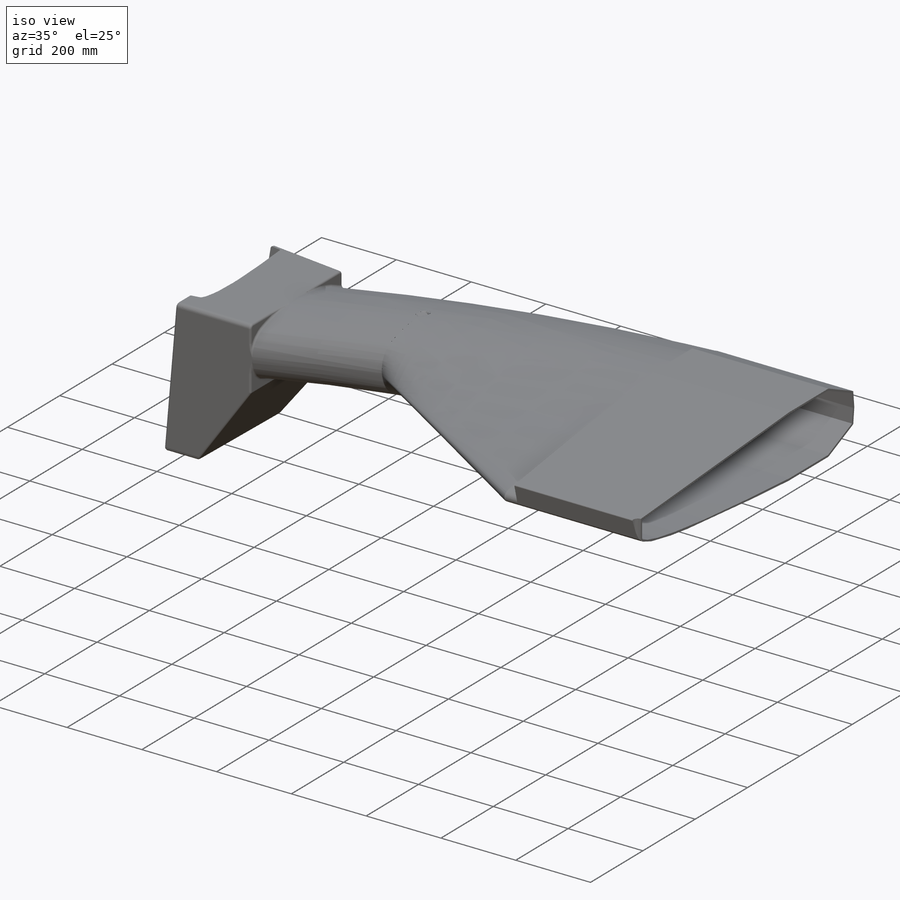
[diagram: iso view]
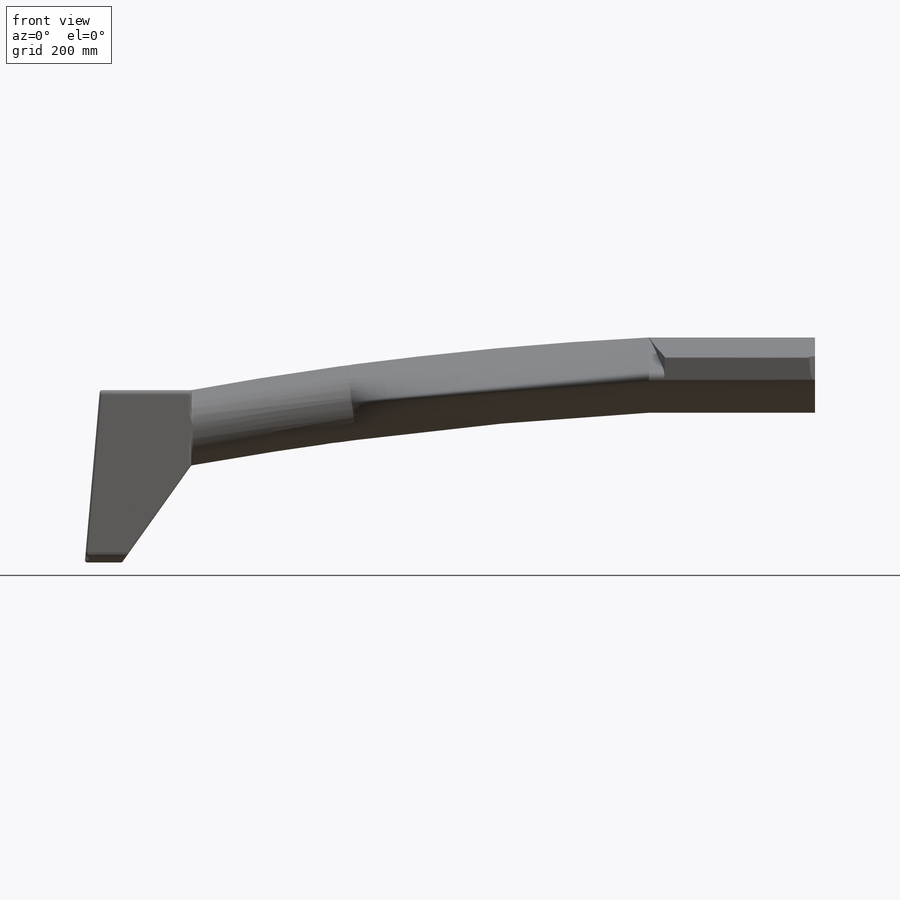
[diagram: front view]
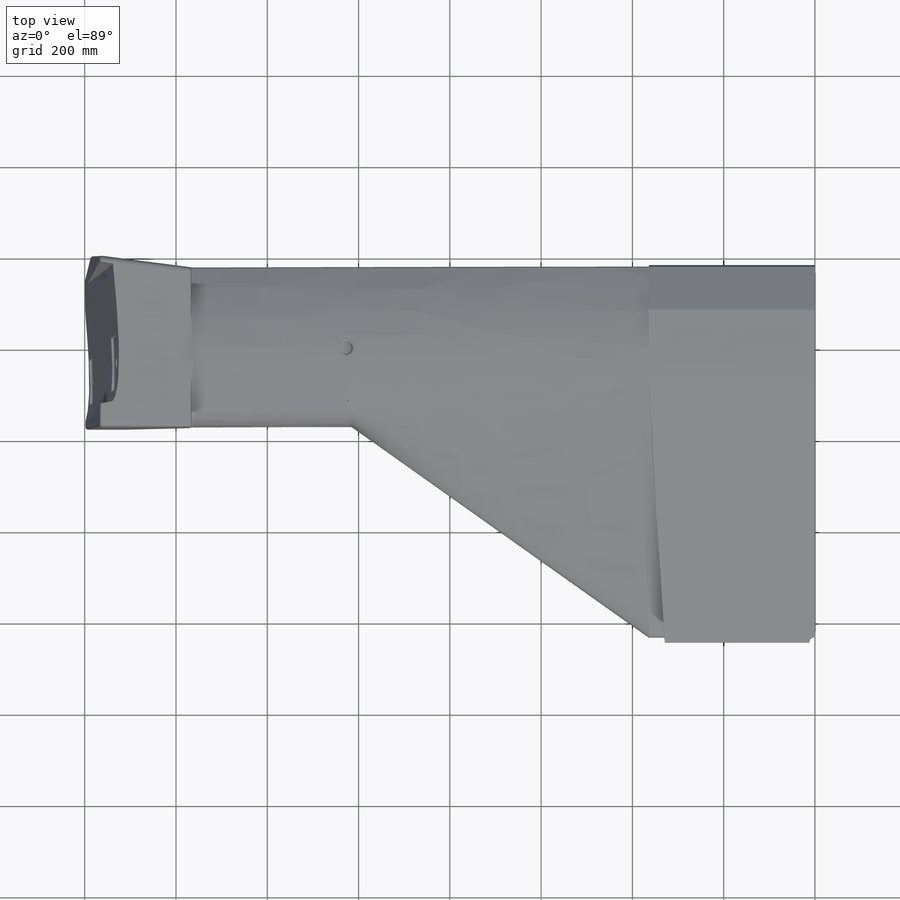
[diagram: top view]
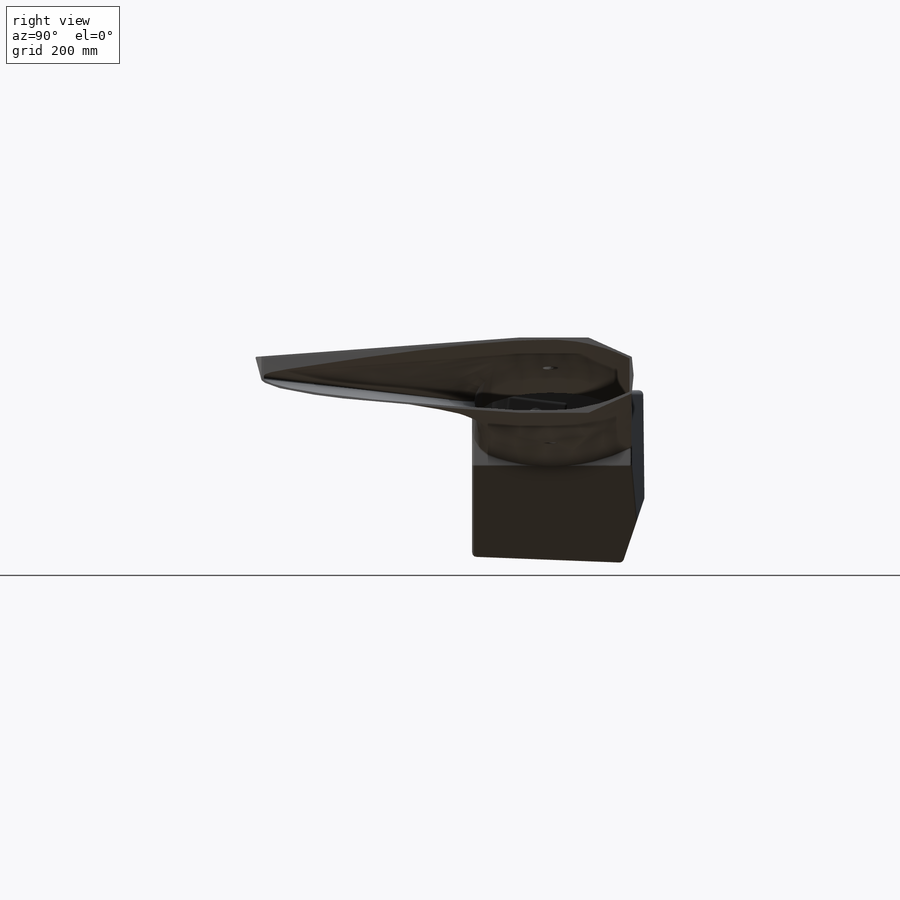
[diagram: right view]
SOLIDWORKS PART (.sldprt)
format: sldprt  version: not decoded by parser v0  size: 2,279,424 bytes
history: native  units: mm
features: sketch x43, fillet x28, plane x13, cut_extrude x5, extrude x4, cut_revolve x2, material x1, shell x1 + 8 further entries (+14 scaffold rows collapsed; 9 parser-record rows omitted)
feature tree (128):
  scaffold x14  (default folders/planes/origin — collapsed)
  material  "Material <nicht festgelegt>"
  plane  "Ebene vorne"
  plane  "Ebene oben"
  plane  "Ebene rechts"
  parser-record x9  (decoder bookkeeping rows leaked as tree rows — omitted from the tree; the rows remain in map.json)
  "Mittelkasten"
  sketch  "Skizze1"  dims[D12=2.5mm D1=650.0mm D2=82.5mm D3=82.5mm D4=70.0mm D5=80.0mm D6=10.669mm D7=40.0mm D8=7.0mm D9=~12.541672mm D10=95.0mm D11=70.0mm D13=~579.306417mm D14=40.0mm D15=40.0mm D16=4.0mm]
  extrude  "Aufsatz-Linear austragen1"  Depth=329mm
  sketch  "Skizze2"  dims[c1.D1=1300.0mm c1.D2=64.0mm c2.D1=~388.65148mm c2.D3=64.0mm c3.D1=354.0mm c3.D3=~26.561266mm c3.D2=350.0mm c4.D3=~3.932132mm c4.D4=~183.157589mm c5.D3=~78.642649mm c5.D4=165.0mm]
  sketch  "Skizze3"  dims[D1=1300.0mm D2=~44.483848mm]
  plane  "Ebene11"
  "Holm Anfang"
  plane  "Ebene1"  Offset=35mm
  extrude  "Aufsatz-Linear austragen2"  [1 undecoded]
  sketch  "Skizze4"  dims[c1.D4=~586.01698mm c1.D5=~141.01346mm c1.D3=5.0mm c2.D4=4.0mm c2.D5=4.0mm c2.D6=~0.640131mm c2.D1=0.0mm c2.D2=5.0mm]
  sketch  "Skizze5"  dims[c1.D1=7500.0mm c1.D8=~963.136389mm c1.D3=~8582.154363mm c1.D10=~172.967068mm c1.D2=1015.0mm c2.D3=1400.0mm c2.D4=80.0mm c2.D5=380.0mm c2.D6=200.0mm c2.D7=5.0deg c2.D8=1600.0mm c3.D3=165.0mm c3.D9=165.0mm c3.D10=165.0mm]
  plane  "Ebene2"
  sketch  "Skizze6"  dims[c1.D1=~388.65148mm c1.D3=64.0mm c2.D1=~388.65148mm c2.D2=64.0mm c2.D7=~327.742126mm c2.D9=~388.65148mm c3.D2=350.0mm c3.D4=~24.821666mm c3.D3=~78.712584mm c4.D4=350.0mm c4.D6=5.0mm c4.D7=4.0mm c4.D8=4.0mm c4.D9=165.0mm c4.D10=~29.157514mm c5.D10=~164.977259mm c5.D7=2.0mm c5.D8=120.0mm c5.D5=5.0mm]
  "Kasten"
  sketch  "Skizze8"  dims[c1.D1=80.0mm c1.D2=165.0mm c1.D3=380.0mm c1.D4=200.0mm c1.D5=380.0mm c2.D5=5.0deg c2.D6=1500.0mm c2.D7=62.0mm c2.D2=1600.0mm]
  extrude  "Aufsatz-Linear austragen3"  Depth=175mm
  sketch  "Skizze29"  dims[c1.D2=~388.65148mm c1.D4=64.0mm c1.D1=~172.027102mm c2.D2=165.0mm c2.D3=~78.712584mm c2.D5=~2.161783mm c2.D1=5.0mm]
  sketch  "3D-Skizze2"  dims[D1=~4257.68383mm]
  sketch  "3D-Skizze3"  dims[D1=~10993.93581mm]
  sketch  "3D-Skizze5"  dims[D1=~5379.752717mm]
  sketch  "3D-Skizze6"  dims[c1.D1=~1477.160393mm c2.D1=~800.418328mm c3.D1=~30.319497mm]
  sketch  "3D-Skizze7"  dims[D1=~34779.247008mm]
  sketch  "3D-Skizze8"  dims[D1=~3504.686604mm]
  sketch  "3D-Skizze9"  dims[D1=~18705.643154mm]
  sketch  "Skizze6<3>"
  sketch  "3D-Skizze2<2>"
  sketch  "3D-Skizze3<2>"
  sketch  "3D-Skizze5<2>"
  sketch  "3D-Skizze6<2>"
  sketch  "3D-Skizze7<2>"
  sketch  "3D-Skizze8<2>"
  sketch  "3D-Skizze9<2>"
  plane  "Ebene4"
  sketch  "Skizze13"  dims[D1=15.0mm D2=50.0mm D3=150.0mm D4=~62.051356mm]
  cut_extrude  "Schnitt-Linear austragen3"  [1 undecoded]
  sketch  "Skizze9"  dims[D1=30.0mm D2=~10.780685mm]
  cut_extrude  "Schnitt-Linear austragen1"  [1 undecoded]
  "Mittelkasten 2"
  fillet  "Verrundung1"  Radius=2.5mm
  sketch  "Skizze11"  dims[D1=35.0mm D2=15.75mm D3=288.495mm D4=35.0mm]
  extrude  "Aufsatz-Linear austragen5"  [1 undecoded]
  sketch  "Skizze12"  dims[D1=0.0mm]
  cut_extrude  "Schnitt-Linear austragen2"  [1 undecoded]
  "Schwertausschnitt"
  plane  "Ebene6"
  plane  "Ebene7"  Offset=50mm
  sketch  "Skizze15"  dims[D1=~30.170371mm]
  plane  "Ebene8"
  sketch  "Skizze16"  dims[D1=~272.80309mm]
  plane  "Ebene9"
  sketch  "Skizze17"  dims[c1.D1=~28.593349mm c2.D1=~147.116974deg c3.D1=~44.556473mm c4.D1=10.0deg c4.D2=~36.996942mm c5.D2=10.0deg c5.D3=~0.72433mm]
  cut_extrude  "Schnitt-Linear austragen5"  [1 undecoded]
  sketch  "Skizze18"  dims[c1.D1=~110.486864mm c2.D1=~1.231031deg c3.D1=200.0mm]
  plane  "Ebene10"
  "Diverse Löcher u. Ausschnitte"
  sketch  "Skizze22"  dims[c1.D1=20.0mm c1.D3=10.0mm c1.D2=18.0mm c2.D3=18.0mm]
  sketch  "Skizze21"  dims[D1=11.0mm]
  sketch  "Skizze19"  dims[c1.D1=9.0mm c1.D2=~33.080335mm c2.D2=~3.345503deg c3.D2=30.0mm c3.D3=~331.028184mm c4.D3=45.0deg c4.D4=150.0mm]
  sketch  "Skizze20"  dims[c1.D2=20.0mm c1.D3=25.0mm c1.D1=~166.960386mm c2.D2=~93.625322mm c2.D1=~162.396075mm c3.D2=~11.678006mm c3.D3=50.0mm c4.D2=50.0mm c4.D3=~21.432356mm c4.D1=25.0mm]
  sketch  "Skizze23"  dims[c1.D1=10.0mm c1.D2=~178.294894mm c1.D3=~134.881854mm c2.D2=128.5mm c2.D3=~158.35971mm c2.D4=~6.578311mm]
  plane  "Ebene12"
  sketch  "Skizze30"  dims[c1.D5=~8380.568989mm c1.D1=~220.598586mm c2.D1=11.0deg c2.D2=25.0mm c2.D3=8.0mm c2.D4=30.0mm c3.D3=~21.473675mm c3.D5=~19.164576mm c4.D3=~20.886619mm c4.D5=~11.533885mm c5.D3=50.0mm c5.D5=0.1mm]
  cut_revolve  "Schnitt-Rotation1"  Angle=360deg
  sketch  "Skizze31"  dims[D1=10.0mm D2=335.0mm D3=30.0mm]
  sketch  "Skizze32"  dims[c1.D1=~57.782569mm c1.D3=9.0mm c2.D1=250.0mm c2.D2=80.0mm]
  sketch  "Skizze33"  dims[D1=26.0mm]
  cut_extrude  "Schnitt-Linear austragen6"  [1 undecoded]
  sketch  "Skizze34"  dims[c1.D1=~53.834293mm c1.D2=9.0mm c2.D1=300.0mm c2.D3=~12.893426mm]
  shell  "Wandung2"  Thickness=5mm
  "Radien Aussen"
  fillet  "Verrundung2"  Radius=10mm
  fillet  "Verrundung3"  Radius=5mm
  fillet  "Verrundung4"  Radius=5mm
  fillet  "Verrundung11"  Radius=5mm
  fillet  "Verrundung13"  Radius=5mm
  fillet  "Verrundung14"  Radius=1mm
  fillet  "Verrundung15"  Radius=5mm
  "Radien Innen"
  fillet  "Verrundung18"  Radius=10mm
  fillet  "Verrundung19"  Radius=5mm
  fillet  "Verrundung20"  Radius=5mm
  fillet  "Verrundung21"  Radius=5mm
  fillet  "Verrundung32"  Radius=5mm
  sketch  "Skizze35"  dims[D1=~1653.566801mm]
  sketch  "Skizze36"  dims[D1=~353.691028mm]
  cut_revolve  "Trennlinie2"  [1 undecoded]
  fillet  "Verrundung64"  Radius=5mm
  fillet  "Verrundung65"  Radius=5mm
  fillet  "Verrundung66"  Radius=5mm
  fillet  "Verrundung67"  Radius=5mm
  fillet  "Verrundung68"  Radius=5mm
  fillet  "Verrundung69"  Radius=5mm
  fillet  "Verrundung70"  Radius=5mm
  fillet  "Verrundung71"  Radius=5mm
  fillet  "Verrundung72"  Radius=5mm
  fillet  "Verrundung73"  Radius=5mm
  fillet  "Verrundung75"  Radius=5mm
  fillet  "Verrundung76"  Radius=5mm
  fillet  "Verrundung78"  Radius=4mm
  fillet  "Verrundung79"  Radius=4mm
  fillet  "Verrundung80"  Radius=5mm
decode coverage: 67 of 83 modeling features carry decoded parameters; 8 rows unclassified (native names shown)
note: ~ marks probable driven/reference dimensions
note: 8 parameter values undecoded
summary: no parameter record found for 8 features
note: suppression state not decoded; provenance and decode notes live in map.json
